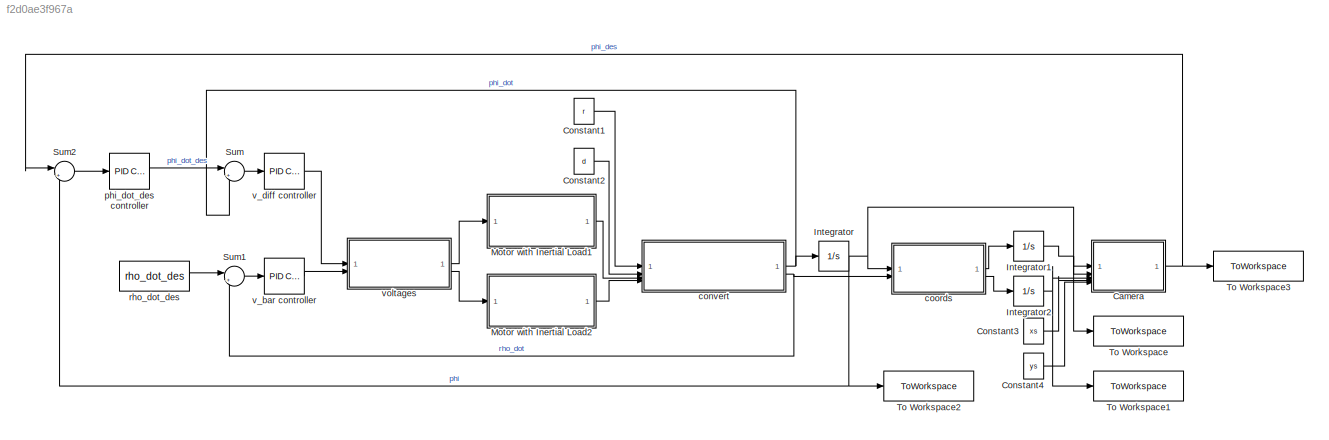
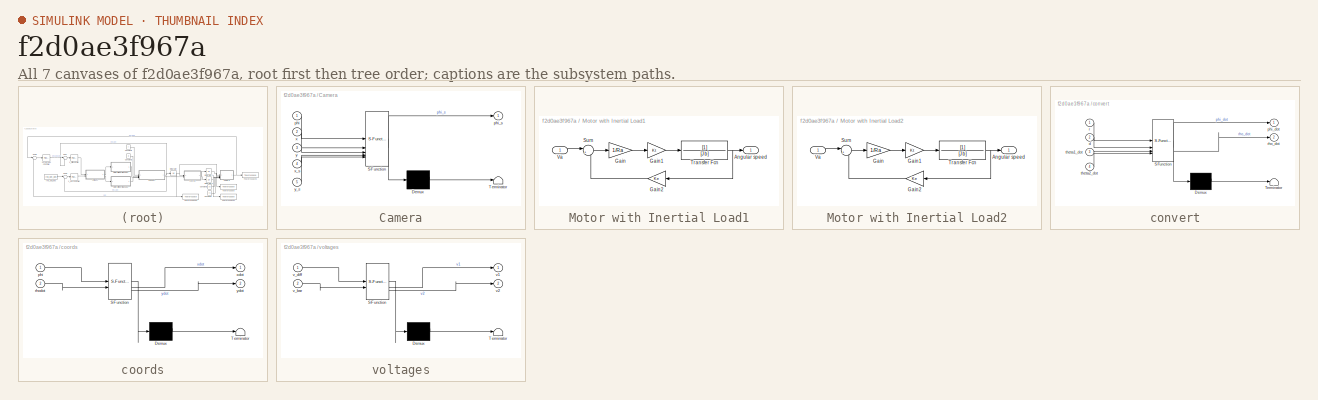
[diagram: thumbnail index - all 7 canvases of the model, root first then tree order]
MODEL slx_f2d0ae3f967a
KIND model
CONFIG AbsTol = auto
CONFIG EnableMultiTasking = off
CONFIG FixedStep = auto
CONFIG MaxStep = auto
CONFIG MinStep = auto
CONFIG RelTol = 1e-3
CONFIG SampleTimeConstraint = Unconstrained
CONFIG SolverName = VariableStepAuto
CONFIG StartTime = 0.0
CONFIG StopTime = 60
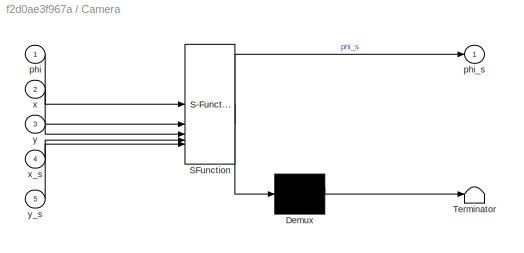
BLOCK [SubSystem] Camera
  ErrorFcn = Stateflow.Translate.translate
  PermitHierarchicalResolution = ExplicitOnly
  SFBlockType = MATLAB Function
  SystemSampleTime = .2
  TreatAsAtomicUnit = on
BLOCK [Demux] Camera/ Demux 
  Outputs = 1
BLOCK [S-Function] Camera/ SFunction 
  EnableBusSupport = on
  FunctionName = sf_sfun
  PortCounts = [5 2]
  SFcnIsStateOwnerBlock = off
  SFunctionDeploymentMode = off
  Tag = Stateflow S-Function 2
BLOCK [Terminator] Camera/ Terminator 
BLOCK [Inport] Camera/phi
BLOCK [Outport] Camera/phi_s
BLOCK [Inport] Camera/x
  Port = 2
BLOCK [Inport] Camera/x_s
  Port = 4
BLOCK [Inport] Camera/y
  Port = 3
BLOCK [Inport] Camera/y_s
  Port = 5
BLOCK [Constant] Constant1
  Value = r
BLOCK [Constant] Constant2
  Value = d
BLOCK [Constant] Constant3
  Value = xs
BLOCK [Constant] Constant4
  Value = ys
BLOCK [Integrator] Integrator
BLOCK [Integrator] Integrator1
BLOCK [Integrator] Integrator2
BLOCK [SubSystem] Motor with Inertial Load1
BLOCK [Outport] Motor with Inertial Load1/Angular speed
BLOCK [Gain] Motor with Inertial Load1/Gain
  Gain = 1/Ra
BLOCK [Gain] Motor with Inertial Load1/Gain1
  Gain = Kt
BLOCK [Gain] Motor with Inertial Load1/Gain2
  Gain = Ke
BLOCK [Sum] Motor with Inertial Load1/Sum
  Inputs = |+-
BLOCK [TransferFcn] Motor with Inertial Load1/Transfer Fcn
  Denominator = [J b]
BLOCK [Inport] Motor with Inertial Load1/Va
BLOCK [SubSystem] Motor with Inertial Load2
BLOCK [Outport] Motor with Inertial Load2/Angular speed
BLOCK [Gain] Motor with Inertial Load2/Gain
  Gain = 1/Ra
BLOCK [Gain] Motor with Inertial Load2/Gain1
  Gain = Kt
BLOCK [Gain] Motor with Inertial Load2/Gain2
  Gain = Ke
BLOCK [Sum] Motor with Inertial Load2/Sum
  Inputs = |+-
BLOCK [TransferFcn] Motor with Inertial Load2/Transfer Fcn
  Denominator = [J b]
BLOCK [Inport] Motor with Inertial Load2/Va
BLOCK [Sum] Sum
  Inputs = |+-
BLOCK [Sum] Sum1
  Inputs = |+-
BLOCK [Sum] Sum2
  Inputs = |+-
BLOCK [ToWorkspace] To Workspace
  FixptAsFi = on
  MaxDataPoints = inf
  SampleTime = -1
  SaveFormat = Timeseries
  VariableName = posx
BLOCK [ToWorkspace] To Workspace1
  FixptAsFi = on
  MaxDataPoints = inf
  SampleTime = -1
  SaveFormat = Timeseries
  VariableName = posy
BLOCK [ToWorkspace] To Workspace2
  FixptAsFi = on
  MaxDataPoints = inf
  SampleTime = -1
  SaveFormat = Timeseries
  VariableName = phi
BLOCK [ToWorkspace] To Workspace3
  FixptAsFi = on
  MaxDataPoints = inf
  SampleTime = -1
  SaveFormat = Timeseries
  VariableName = phi_des
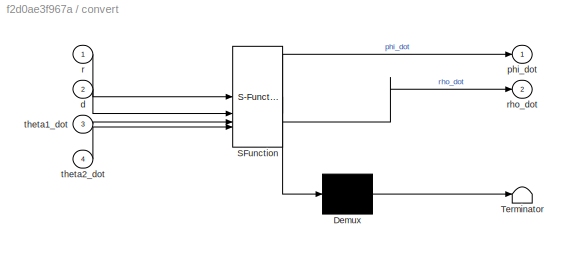
BLOCK [SubSystem] convert
  ErrorFcn = Stateflow.Translate.translate
  LibrarySourceBlock = simulink/User-Defined\nFunctions/MATLAB Function
  PermitHierarchicalResolution = ExplicitOnly
  SFBlockType = MATLAB Function
  TreatAsAtomicUnit = on
BLOCK [Demux] convert/ Demux 
  Outputs = 1
BLOCK [S-Function] convert/ SFunction 
  EnableBusSupport = on
  FunctionName = sf_sfun
  PortCounts = [4 3]
  SFcnIsStateOwnerBlock = off
  SFunctionDeploymentMode = off
  Tag = Stateflow S-Function 4
BLOCK [Terminator] convert/ Terminator 
BLOCK [Inport] convert/d
  Port = 2
BLOCK [Outport] convert/phi_dot
BLOCK [Inport] convert/r
BLOCK [Outport] convert/rho_dot
  Port = 2
BLOCK [Inport] convert/theta1_dot
  Port = 3
BLOCK [Inport] convert/theta2_dot
  Port = 4
BLOCK [SubSystem] coords
  ErrorFcn = Stateflow.Translate.translate
  LibrarySourceBlock = simulink/User-Defined\nFunctions/MATLAB Function
  PermitHierarchicalResolution = ExplicitOnly
  SFBlockType = MATLAB Function
  TreatAsAtomicUnit = on
BLOCK [Demux] coords/ Demux 
  Outputs = 1
BLOCK [S-Function] coords/ SFunction 
  EnableBusSupport = on
  FunctionName = sf_sfun
  PortCounts = [2 3]
  SFcnIsStateOwnerBlock = off
  SFunctionDeploymentMode = off
  Tag = Stateflow S-Function 1
BLOCK [Terminator] coords/ Terminator 
BLOCK [Inport] coords/phi
BLOCK [Inport] coords/rhodot
  Port = 2
BLOCK [Outport] coords/xdot
BLOCK [Outport] coords/ydot
  Port = 2
BLOCK [Reference] phi_dot_des controller  REF=slpidlib/PID Controller
  LibrarySourceBlock = simulink/Continuous/PID Controller
  SourceBlock = slpidlib/PID Controller
  SourceType = PID 1dof
BLOCK [Constant] rho_dot_des
  Value = rho_dot_des
BLOCK [Reference] v_bar controller  REF=slpidlib/PID Controller
  LibrarySourceBlock = simulink/Continuous/PID Controller
  SourceBlock = slpidlib/PID Controller
  SourceType = PID 1dof
BLOCK [Reference] v_diff controller  REF=slpidlib/PID Controller
  LibrarySourceBlock = simulink/Continuous/PID Controller
  SourceBlock = slpidlib/PID Controller
  SourceType = PID 1dof
BLOCK [SubSystem] voltages
  ErrorFcn = Stateflow.Translate.translate
  LibrarySourceBlock = simulink/User-Defined\nFunctions/MATLAB Function
  PermitHierarchicalResolution = ExplicitOnly
  SFBlockType = MATLAB Function
  TreatAsAtomicUnit = on
BLOCK [Demux] voltages/ Demux 
  Outputs = 1
BLOCK [S-Function] voltages/ SFunction 
  EnableBusSupport = on
  FunctionName = sf_sfun
  PortCounts = [2 3]
  SFcnIsStateOwnerBlock = off
  SFunctionDeploymentMode = off
  Tag = Stateflow S-Function 3
BLOCK [Terminator] voltages/ Terminator 
BLOCK [Outport] voltages/v1
BLOCK [Outport] voltages/v2
  Port = 2
BLOCK [Inport] voltages/v_bar
  Port = 2
BLOCK [Inport] voltages/v_diff
NET Camera:1 -> Sum2:1, To Workspace3:1
LINE Constant1:1 -> convert:1
LINE Constant2:1 -> convert:2
LINE Constant3:1 -> Camera:4
LINE Constant4:1 -> Camera:5
NET Integrator1:1 -> Camera:2, To Workspace:1
NET Integrator2:1 -> Camera:3, To Workspace1:1
NET Integrator:1 -> Camera:1, Sum2:2, To Workspace2:1, coords:1
LINE Motor with Inertial Load1/Gain1:1 -> Motor with Inertial Load1/Transfer Fcn:1
LINE Motor with Inertial Load1/Gain2:1 -> Motor with Inertial Load1/Sum:2
LINE Motor with Inertial Load1/Gain:1 -> Motor with Inertial Load1/Gain1:1
LINE Motor with Inertial Load1/Sum:1 -> Motor with Inertial Load1/Gain:1
NET Motor with Inertial Load1/Transfer Fcn:1 -> Motor with Inertial Load1/Angular speed:1, Motor with Inertial Load1/Gain2:1
LINE Motor with Inertial Load1/Va:1 -> Motor with Inertial Load1/Sum:1
LINE Motor with Inertial Load1:1 -> convert:3
LINE Motor with Inertial Load2/Gain1:1 -> Motor with Inertial Load2/Transfer Fcn:1
LINE Motor with Inertial Load2/Gain2:1 -> Motor with Inertial Load2/Sum:2
LINE Motor with Inertial Load2/Gain:1 -> Motor with Inertial Load2/Gain1:1
LINE Motor with Inertial Load2/Sum:1 -> Motor with Inertial Load2/Gain:1
NET Motor with Inertial Load2/Transfer Fcn:1 -> Motor with Inertial Load2/Angular speed:1, Motor with Inertial Load2/Gain2:1
LINE Motor with Inertial Load2/Va:1 -> Motor with Inertial Load2/Sum:1
LINE Motor with Inertial Load2:1 -> convert:4
LINE Sum1:1 -> v_bar controller:1
LINE Sum2:1 -> phi_dot_des controller:1
LINE Sum:1 -> v_diff controller:1
NET convert:1 -> Integrator:1, Sum:2
NET convert:2 -> Sum1:2, coords:2
LINE coords:1 -> Integrator1:1
LINE coords:2 -> Integrator2:1
LINE phi_dot_des controller:1 -> Sum:1
LINE rho_dot_des:1 -> Sum1:1
LINE v_bar controller:1 -> voltages:2
LINE v_diff controller:1 -> voltages:1
LINE voltages:1 -> Motor with Inertial Load1:1
LINE voltages:2 -> Motor with Inertial Load2:1
note: NET lines group one-source signal fan-out (src -> all destinations, sorted); 1:1 wires keep LINE
CHART coords states=1 transitions=1
  STATE_LABEL 'eML_blk_kernel()'
  STATE_LABEL 'SCRIPT:\nfunction [xdot,ydot]= coords(phi,rhodot)\n    xdot=rhodot*cos(phi);\n    ydot=rhodot*sin(phi);\nend'
CHART Camera states=1 transitions=1
  STATE_LABEL 'eML_blk_kernel()'
  STATE_LABEL 'SCRIPT:\nfunction phi_s = fcn(phi,x,y,x_s,y_s)\n%#codegen\n%\n% Simulation of Camera with line detection\n% phi - angle of robot in degrees\n% x - x position of robot in feet\n% y - y position of robot in feet\n% x_s - vector of x coordinates for line to be detected (in feet)\n% y_s - vector of y coordinates for line to be detected (in feet)\n%\n%\n\n% change show_image to 1 to see camera image during simulati...<+2767ch>'
CHART voltages states=1 transitions=1
  STATE_LABEL 'eML_blk_kernel()'
  STATE_LABEL 'SCRIPT:\nfunction [v1, v2] = voltages(v_diff, v_bar)\n    v1 = (v_bar + v_diff)/2;\n    v2 = (v_bar - v_diff)/2;\nend'
CHART convert states=1 transitions=1
  STATE_LABEL 'eML_blk_kernel()'
  STATE_LABEL 'SCRIPT:\nfunction [phi_dot, rho_dot] = convert(r, d, theta1_dot, theta2_dot)\n    phi_dot = (theta1_dot - theta2_dot)*r/d;\n    rho_dot = (theta1_dot + theta2_dot)*r/d;\nend'
CHART  states=0 transitions=0
CHART  states=0 transitions=0
CHART  states=0 transitions=0
CHART  states=0 transitions=0
